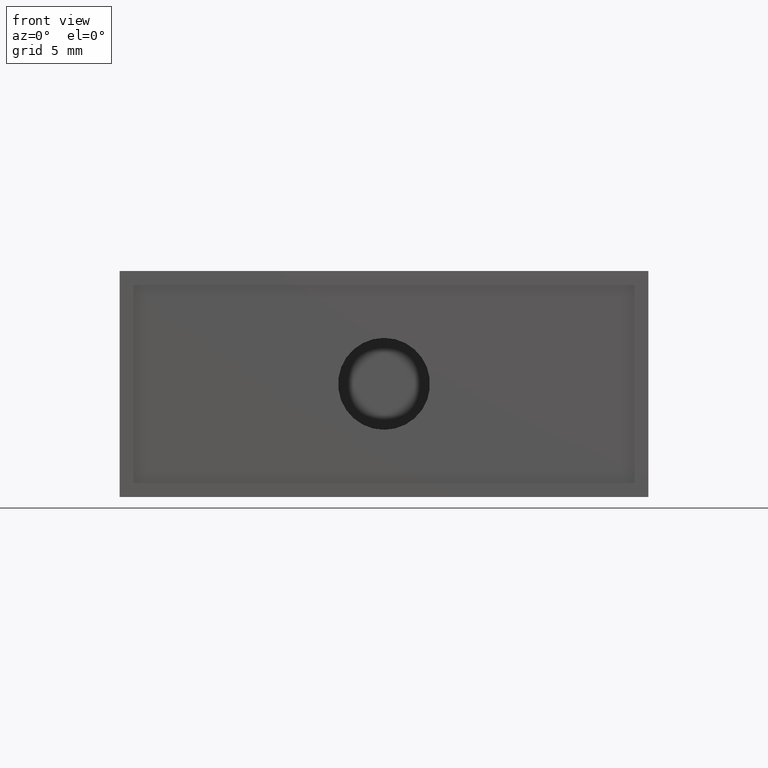
[diagram: clean part render]
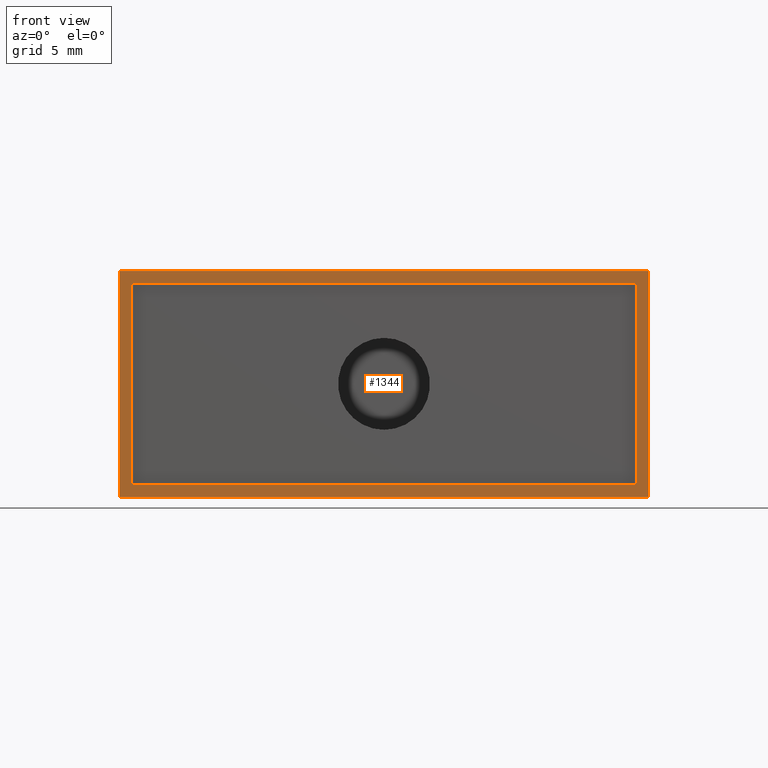
[diagram: same view with one face highlighted and labeled with its STEP entity id]
A machine part, front view. The second image highlights one B-rep face of the part: STEP entity #1344.
In plain terms, the highlighted planar face has unit normal (0, 1, 0).
Its self-contained STEP definition (entity closure, byte-faithful):
#54 = DIRECTION ( 'NONE',  ( 1.000000000000000000, 0.0000000000000000000, 0.0000000000000000000 ) ) ;
#55 = VECTOR ( 'NONE', #54, 39.37007874015748100 ) ;
#56 = CARTESIAN_POINT ( 'NONE',  ( -0.6899999999999991700, -0.5900000000000005200, 0.5899999999999999700 ) ) ;
#57 = LINE ( 'NONE', #56, #55 ) ;
#75 = CARTESIAN_POINT ( 'NONE',  ( 0.6900000000000006100, -0.5900000000000005200, 0.5899999999999999700 ) ) ;
#76 = DIRECTION ( 'NONE',  ( -0.0000000000000000000, -0.0000000000000000000, -1.000000000000000000 ) ) ;
#77 = VECTOR ( 'NONE', #76, 39.37007874015748100 ) ;
#78 = CARTESIAN_POINT ( 'NONE',  ( 0.6900000000000006100, -0.5900000000000005200, 0.5899999999999999700 ) ) ;
#79 = LINE ( 'NONE', #78, #77 ) ;
#129 = CARTESIAN_POINT ( 'NONE',  ( -0.6899999999999991700, -0.5900000000000005200, 0.5899999999999999700 ) ) ;
#130 = DIRECTION ( 'NONE',  ( -0.0000000000000000000, -0.0000000000000000000, -1.000000000000000000 ) ) ;
#131 = VECTOR ( 'NONE', #130, 39.37007874015748100 ) ;
#132 = CARTESIAN_POINT ( 'NONE',  ( -0.6899999999999991700, -0.5900000000000005200, 0.5899999999999999700 ) ) ;
#133 = LINE ( 'NONE', #132, #131 ) ;
#165 = CARTESIAN_POINT ( 'NONE',  ( -0.6899999999999991700, -0.5900000000000005200, 0.0000000000000000000 ) ) ;
#296 = CARTESIAN_POINT ( 'NONE',  ( -0.6587499999999991700, -0.5900000000000004100, 0.5587499999999999700 ) ) ;
#297 = CARTESIAN_POINT ( 'NONE',  ( 0.6587500000000005000, -0.5900000000000005200, 0.5587499999999999700 ) ) ;
#298 = DIRECTION ( 'NONE',  ( -1.000000000000000000, 1.036754456798581900E-016, -0.0000000000000000000 ) ) ;
#299 = VECTOR ( 'NONE', #298, 39.37007874015748100 ) ;
#300 = CARTESIAN_POINT ( 'NONE',  ( -0.6587499999999991700, -0.5900000000000004100, 0.5587499999999999700 ) ) ;
#301 = DIRECTION ( 'NONE',  ( 0.0000000000000000000, -0.0000000000000000000, 1.000000000000000000 ) ) ;
#302 = DIRECTION ( 'NONE',  ( 0.0000000000000000000, 1.000000000000000000, 0.0000000000000000000 ) ) ;
#303 = AXIS2_PLACEMENT_3D ( 'NONE', #305, #302, #301 ) ;
#304 = LINE ( 'NONE', #300, #299 ) ;
#305 = CARTESIAN_POINT ( 'NONE',  ( -0.6899999999999991700, -0.5900000000000005200, 0.5899999999999999700 ) ) ;
#306 = PLANE ( 'NONE',  #303 ) ;
#307 = FACE_OUTER_BOUND ( 'NONE', #1363, .T. ) ;
#308 = FACE_BOUND ( 'NONE', #1345, .T. ) ;
#486 = CARTESIAN_POINT ( 'NONE',  ( 0.6900000000000006100, -0.5900000000000005200, 0.0000000000000000000 ) ) ;
#487 = DIRECTION ( 'NONE',  ( 1.000000000000000000, 0.0000000000000000000, 0.0000000000000000000 ) ) ;
#488 = VECTOR ( 'NONE', #487, 39.37007874015748100 ) ;
#489 = CARTESIAN_POINT ( 'NONE',  ( -0.6899999999999991700, -0.5900000000000005200, 0.0000000000000000000 ) ) ;
#490 = LINE ( 'NONE', #489, #488 ) ;
#491 = DIRECTION ( 'NONE',  ( -0.0000000000000000000, -0.0000000000000000000, -1.000000000000000000 ) ) ;
#492 = VECTOR ( 'NONE', #491, 39.37007874015748100 ) ;
#493 = CARTESIAN_POINT ( 'NONE',  ( -0.6587499999999991700, -0.5900000000000004100, 0.03124999999999997600 ) ) ;
#494 = LINE ( 'NONE', #493, #492 ) ;
#495 = CARTESIAN_POINT ( 'NONE',  ( -0.6587499999999991700, -0.5900000000000004100, 0.03124999999999997600 ) ) ;
#496 = DIRECTION ( 'NONE',  ( 1.000000000000000000, -1.036754456798581900E-016, 1.943914606497341200E-017 ) ) ;
#497 = VECTOR ( 'NONE', #496, 39.37007874015748100 ) ;
#498 = CARTESIAN_POINT ( 'NONE',  ( 0.6587500000000005000, -0.5900000000000006400, 0.03125000000000000000 ) ) ;
#499 = LINE ( 'NONE', #498, #497 ) ;
#500 = CARTESIAN_POINT ( 'NONE',  ( 0.6587500000000005000, -0.5900000000000006400, 0.03125000000000000000 ) ) ;
#501 = DIRECTION ( 'NONE',  ( -0.0000000000000000000, -0.0000000000000000000, 1.000000000000000000 ) ) ;
#502 = VECTOR ( 'NONE', #501, 39.37007874015748100 ) ;
#503 = CARTESIAN_POINT ( 'NONE',  ( 0.6587500000000005000, -0.5900000000000006400, 0.5587499999999999700 ) ) ;
#504 = LINE ( 'NONE', #503, #502 ) ;
#1281 = EDGE_CURVE ( 'NONE', #1282, #1336, #133, .T. ) ;
#1282 = VERTEX_POINT ( 'NONE', #129 ) ;
#1292 = ORIENTED_EDGE ( 'NONE', *, *, #1293, .F. ) ;
#1293 = EDGE_CURVE ( 'NONE', #1282, #1315, #57, .T. ) ;
#1294 = ORIENTED_EDGE ( 'NONE', *, *, #1281, .T. ) ;
#1313 = ORIENTED_EDGE ( 'NONE', *, *, #1314, .F. ) ;
#1314 = EDGE_CURVE ( 'NONE', #1315, #1366, #79, .T. ) ;
#1315 = VERTEX_POINT ( 'NONE', #75 ) ;
#1336 = VERTEX_POINT ( 'NONE', #165 ) ;
#1344 = ADVANCED_FACE ( 'NONE', ( #308, #307 ), #306, .F. ) ;
#1345 = EDGE_LOOP ( 'NONE', ( #1346, #1350, #1358, #1361 ) ) ;
#1346 = ORIENTED_EDGE ( 'NONE', *, *, #1347, .F. ) ;
#1347 = EDGE_CURVE ( 'NONE', #1348, #1349, #304, .T. ) ;
#1348 = VERTEX_POINT ( 'NONE', #297 ) ;
#1349 = VERTEX_POINT ( 'NONE', #296 ) ;
#1350 = ORIENTED_EDGE ( 'NONE', *, *, #1356, .F. ) ;
#1356 = EDGE_CURVE ( 'NONE', #1357, #1348, #504, .T. ) ;
#1357 = VERTEX_POINT ( 'NONE', #500 ) ;
#1358 = ORIENTED_EDGE ( 'NONE', *, *, #1359, .F. ) ;
#1359 = EDGE_CURVE ( 'NONE', #1360, #1357, #499, .T. ) ;
#1360 = VERTEX_POINT ( 'NONE', #495 ) ;
#1361 = ORIENTED_EDGE ( 'NONE', *, *, #1362, .F. ) ;
#1362 = EDGE_CURVE ( 'NONE', #1349, #1360, #494, .T. ) ;
#1363 = EDGE_LOOP ( 'NONE', ( #1364, #1313, #1292, #1294 ) ) ;
#1364 = ORIENTED_EDGE ( 'NONE', *, *, #1365, .T. ) ;
#1365 = EDGE_CURVE ( 'NONE', #1336, #1366, #490, .T. ) ;
#1366 = VERTEX_POINT ( 'NONE', #486 ) ;